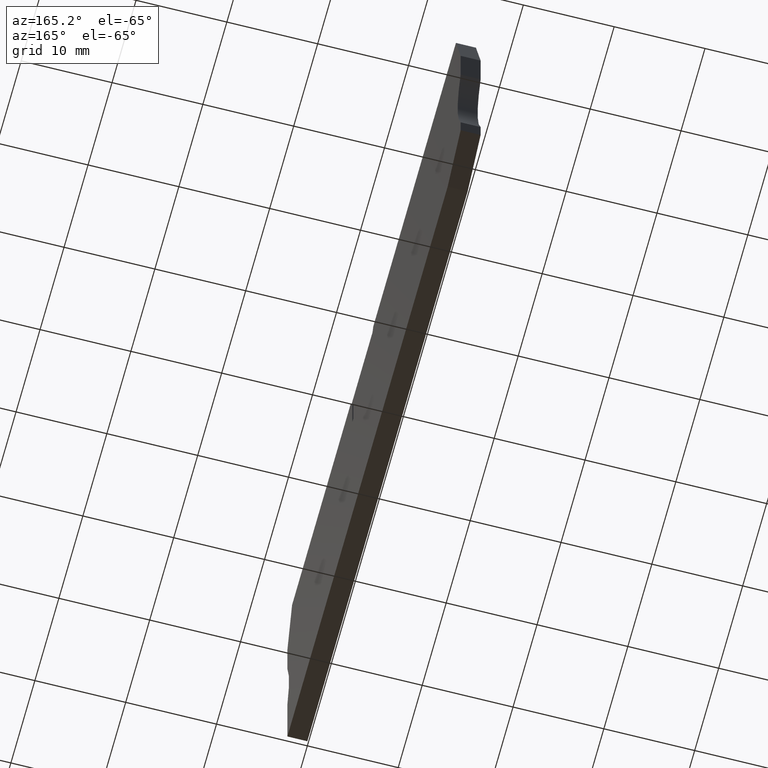
[diagram: clean part render]
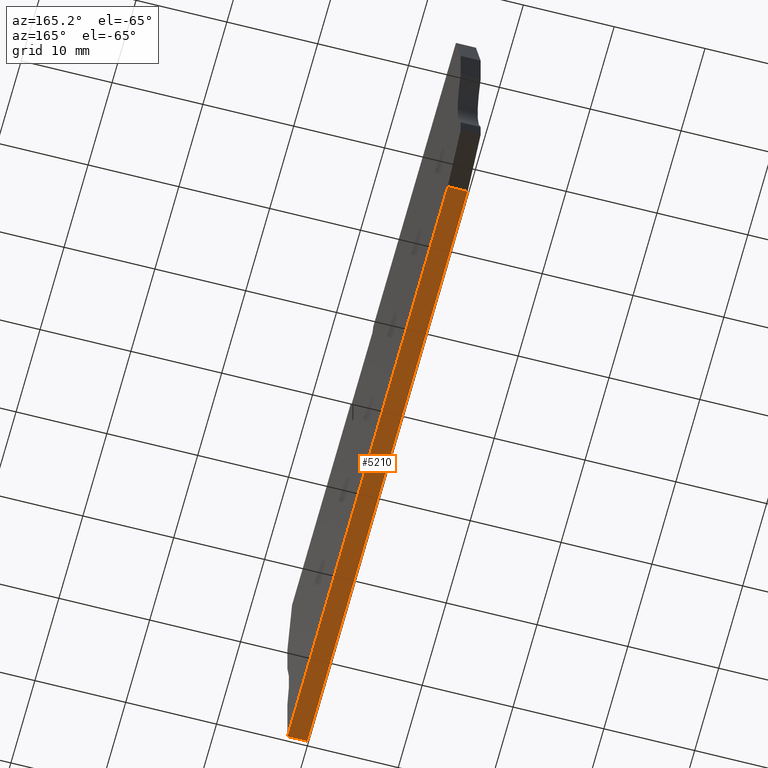
[diagram: same view with one face highlighted and labeled with its STEP entity id]
A machine part, auxiliary view. The second image highlights one B-rep face of the part: STEP entity #5210.
In plain terms, the highlighted planar face has unit normal (-0, 0, -1).
Its self-contained STEP definition (entity closure, byte-faithful):
#840=CARTESIAN_POINT('',(32.6248762616859,-38.2000000000015,55.37));
#850=VERTEX_POINT('',#840);
#880=CARTESIAN_POINT('',(11.4461541156283,-38.2000000000015,55.37));
#890=DIRECTION('',(1.,0.,0.));
#900=VECTOR('',#890,1.);
#910=LINE('',#880,#900);
#920=CARTESIAN_POINT('',(-34.1678327783247,-38.2000000000015,55.37));
#930=VERTEX_POINT('',#920);
#940=EDGE_CURVE('',#930,#850,#910,.T.);
#2870=CARTESIAN_POINT('',(-34.1678327783247,-38.2000000000015,53.17));
#2880=DIRECTION('',(0.,0.,1.));
#2890=VECTOR('',#2880,1.);
#2900=LINE('',#2870,#2890);
#2910=CARTESIAN_POINT('',(-34.1678327783247,-38.2000000000015,53.17));
#2920=VERTEX_POINT('',#2910);
#2930=EDGE_CURVE('',#2920,#930,#2900,.T.);
#4840=CARTESIAN_POINT('',(32.6248762616859,-38.2000000000015,53.17));
#4850=VERTEX_POINT('',#4840);
#4880=CARTESIAN_POINT('',(32.6248762616859,-38.2000000000015,53.17));
#4890=DIRECTION('',(0.,0.,1.));
#4900=VECTOR('',#4890,1.);
#4910=LINE('',#4880,#4900);
#4920=EDGE_CURVE('',#4850,#850,#4910,.T.);
#5050=CARTESIAN_POINT('',(32.578459389798,-38.2000000000015,53.17));
#5060=DIRECTION('',(-0.,-1.,-0.));
#5070=DIRECTION('',(-1.,0.,0.));
#5080=AXIS2_PLACEMENT_3D('',#5050,#5060,#5070);
#5090=PLANE('',#5080);
#5100=ORIENTED_EDGE('',*,*,#940,.F.);
#5110=ORIENTED_EDGE('',*,*,#4920,.T.);
#5120=CARTESIAN_POINT('',(11.4461541156283,-38.2000000000015,53.17));
#5130=DIRECTION('',(-1.,0.,0.));
#5140=VECTOR('',#5130,1.);
#5150=LINE('',#5120,#5140);
#5160=EDGE_CURVE('',#4850,#2920,#5150,.T.);
#5170=ORIENTED_EDGE('',*,*,#5160,.F.);
#5180=ORIENTED_EDGE('',*,*,#2930,.F.);
#5190=EDGE_LOOP('',(#5180,#5170,#5110,#5100));
#5200=FACE_OUTER_BOUND('',#5190,.T.);
#5210=ADVANCED_FACE('',(#5200),#5090,.T.);